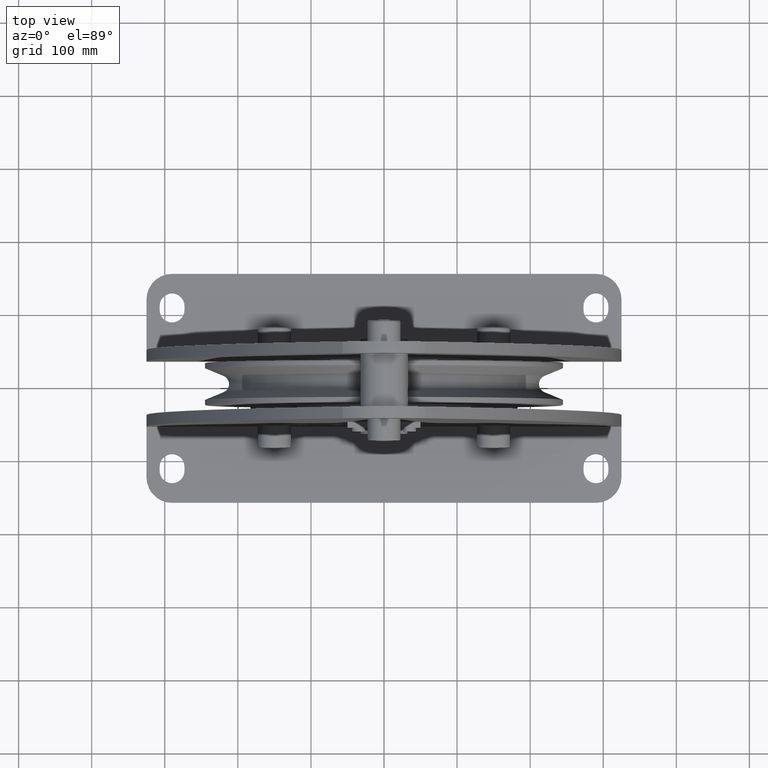
[diagram: clean part render]
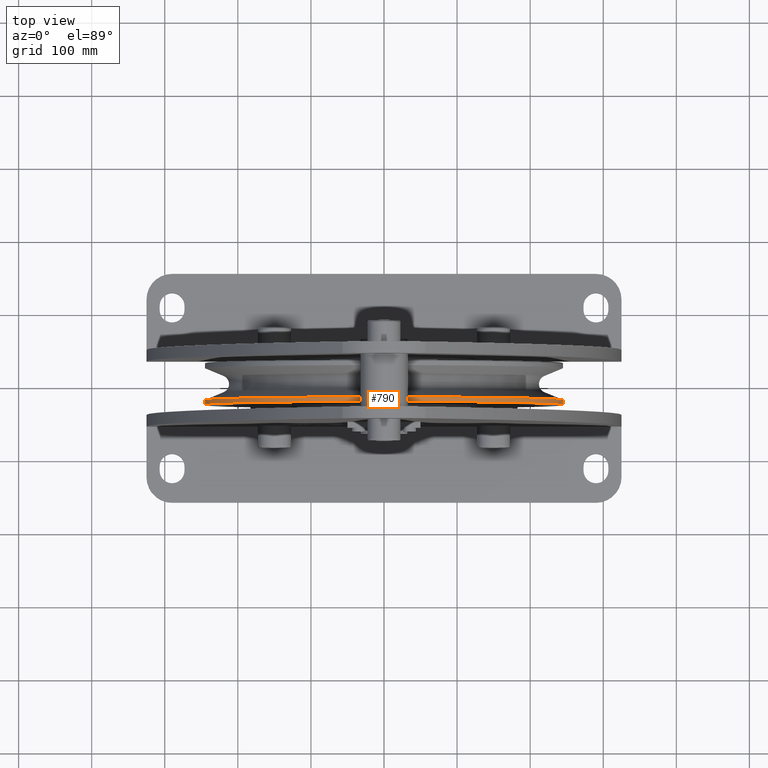
[diagram: same view with one face highlighted and labeled with its STEP entity id]
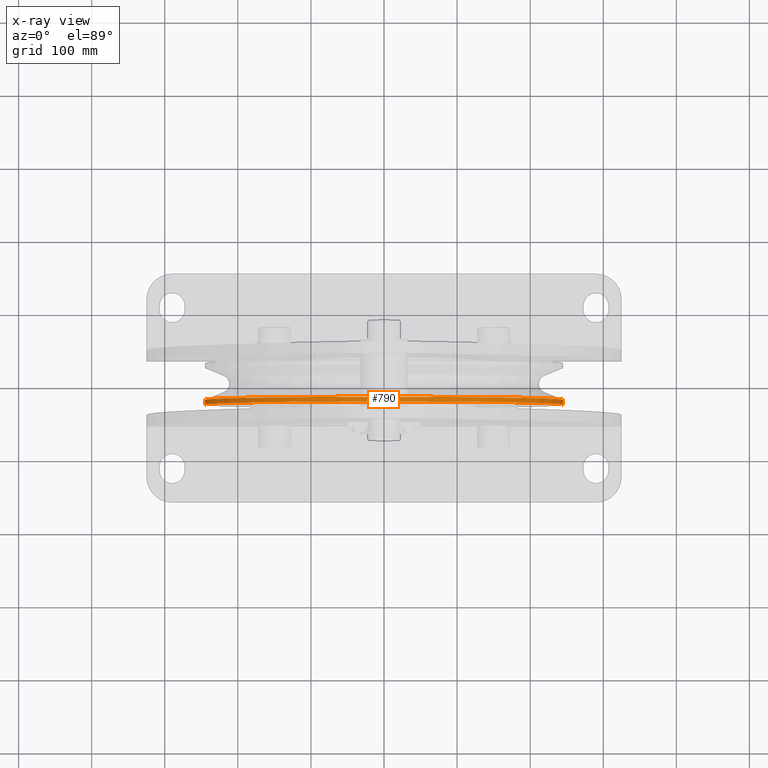
[diagram: x-ray of the same camera — body ghosted, the highlighted face saturated]
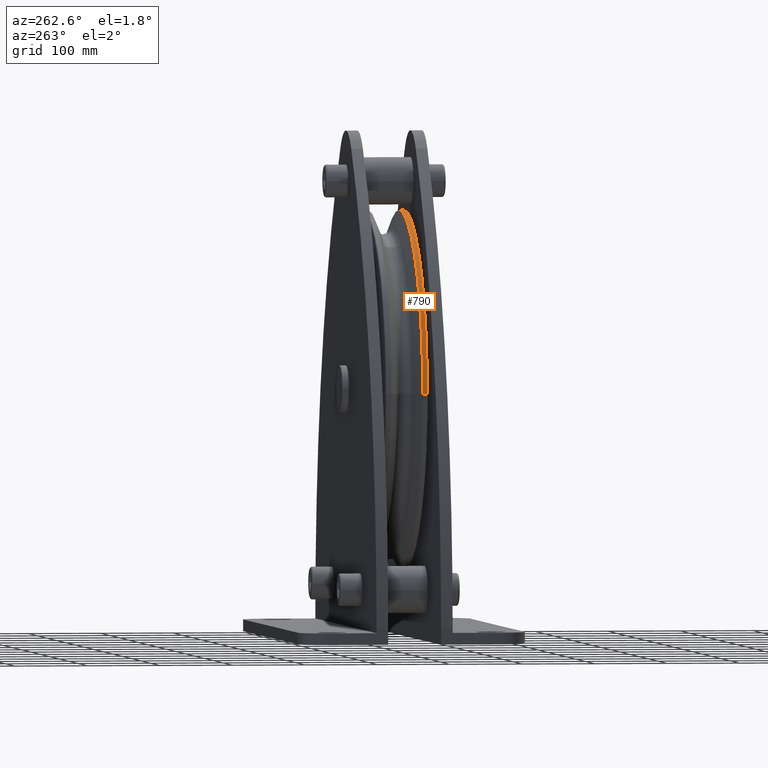
[diagram: same view with one face highlighted and labeled with its STEP entity id]
A machine part, top view. The second image highlights one B-rep face of the part: STEP entity #790.
The next image is the same camera in x-ray: the body ghosted, the highlighted face saturated — about 0% of this face is hidden behind the body in this view.
A second angle (auxiliary view) of the same face is appended — the face is thin or edge-on in the first view.
In plain terms, the highlighted cylindrical surface (partial cylindrical patch) has radius 245 mm, axis along (0, -1, 0).
Its self-contained STEP definition (entity closure, byte-faithful):
#790=ADVANCED_FACE('',(#2158),#2159,.T.);
#2158=FACE_OUTER_BOUND('',#4190,.T.);
#2159=CYLINDRICAL_SURFACE('',#4191,245.0);
#4190=EDGE_LOOP('',(#6676,#6677,#6678,#6679));
#4191=AXIS2_PLACEMENT_3D('',#6680,#6681,#6682);
#6676=ORIENTED_EDGE('',*,*,#12481,.F.);
#6677=ORIENTED_EDGE('',*,*,#12482,.T.);
#6678=ORIENTED_EDGE('',*,*,#12483,.F.);
#6679=ORIENTED_EDGE('',*,*,#12484,.F.);
#6680=CARTESIAN_POINT('',(0.0,-24.8435955,0.0));
#6681=DIRECTION('',(0.0,-1.0,0.0));
#6682=DIRECTION('',(1.0,0.0,0.0));
#12481=EDGE_CURVE('',#15153,#15154,#15155,.T.);
#12482=EDGE_CURVE('',#15153,#15156,#15157,.T.);
#12483=EDGE_CURVE('',#15158,#15156,#15159,.T.);
#12484=EDGE_CURVE('',#15154,#15158,#15160,.T.);
#15153=VERTEX_POINT('',#21991);
#15154=VERTEX_POINT('',#21992);
#15155=LINE('',#21993,#21994);
#15156=VERTEX_POINT('',#21995);
#15157=CIRCLE('',#21996,245.0);
#15158=VERTEX_POINT('',#21997);
#15159=LINE('',#21998,#21999);
#15160=CIRCLE('',#22000,245.0);
#21991=CARTESIAN_POINT('',(245.0,-21.687191,0.0));
#21992=CARTESIAN_POINT('',(245.0,-28.0,0.0));
#21993=CARTESIAN_POINT('',(245.0,-24.8435955,-3.00038465791101E-014));
#21994=VECTOR('',#27375,1.0);
#21995=CARTESIAN_POINT('',(-245.0,-21.687191,3.00038465791101E-014));
#21996=AXIS2_PLACEMENT_3D('',#27376,#27377,#27378);
#21997=CARTESIAN_POINT('',(-245.0,-28.0,3.00038465791101E-014));
#21998=CARTESIAN_POINT('',(-245.0,-24.8435955,3.00038465791101E-014));
#21999=VECTOR('',#27379,1.0);
#22000=AXIS2_PLACEMENT_3D('',#27380,#27381,#27382);
#27375=DIRECTION('',(0.0,-1.0,0.0));
#27376=CARTESIAN_POINT('',(0.0,-21.687191,0.0));
#27377=DIRECTION('',(0.0,-1.0,0.0));
#27378=DIRECTION('',(1.0,0.0,0.0));
#27379=DIRECTION('',(-0.0,1.0,-0.0));
#27380=CARTESIAN_POINT('',(0.0,-28.0,0.0));
#27381=DIRECTION('',(0.0,-1.0,0.0));
#27382=DIRECTION('',(1.0,0.0,0.0));